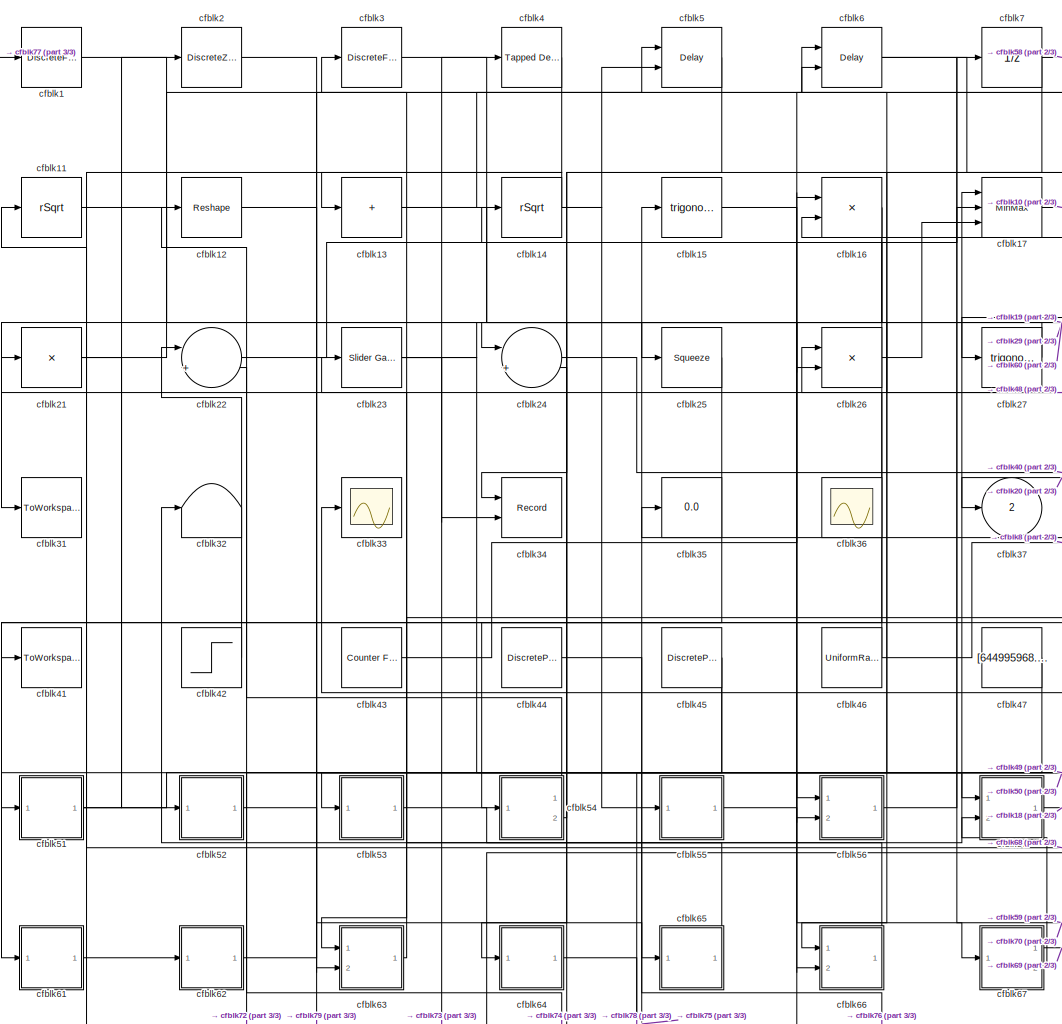
[diagram: root canvas - part 1/3, center side, full height]
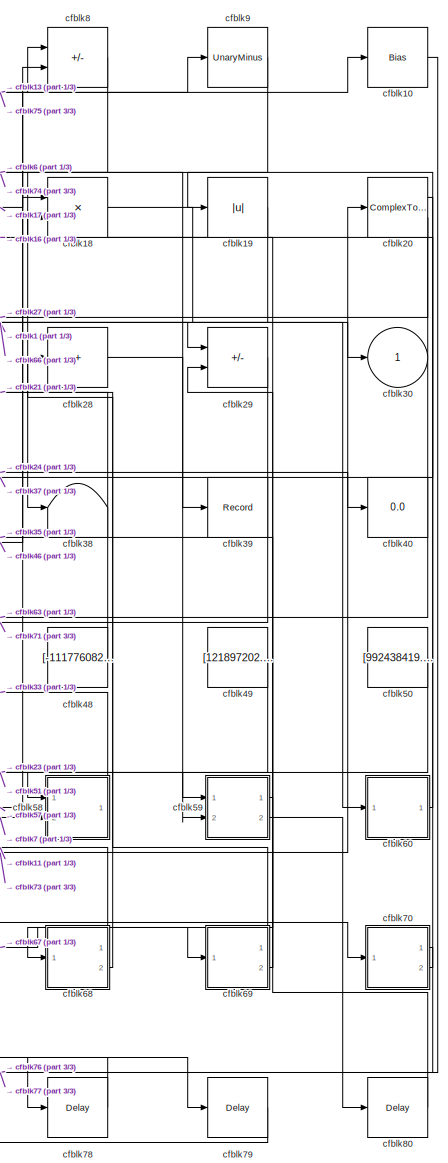
[diagram: root canvas - part 2/3, right side, full height]
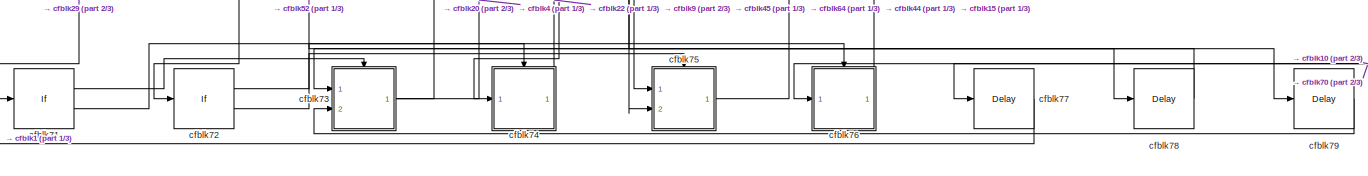
[diagram: root canvas - part 3/3, full width, bottom band]
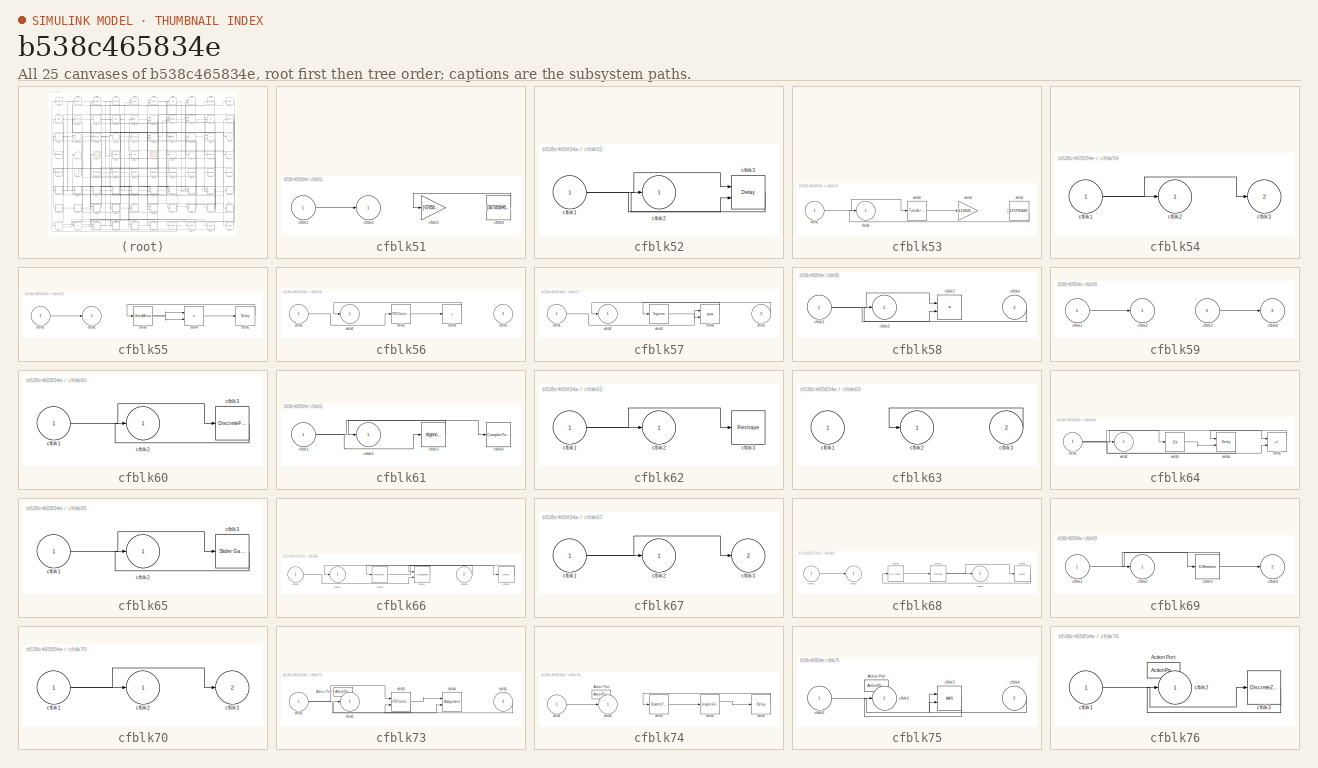
[diagram: thumbnail index - all 25 canvases of the model, root first then tree order]
MODEL slx_b538c465834e
KIND model
CONFIG AbsTol = auto
CONFIG EnableMultiTasking = off
CONFIG FixedStep = auto
CONFIG MaxStep = auto
CONFIG MinStep = auto
CONFIG RelTol = 1e-3
CONFIG SampleTimeConstraint = Unconstrained
CONFIG SolverName = VariableStepAuto
CONFIG StartTime = 0.0
CONFIG StopTime = 10.0
BLOCK [DiscreteFir] cfblk1
  InputPortMap = u0
  OutputPortMap = o0
  Ports = [1, 1]
  SampleTime = 1
BLOCK [Bias] cfblk10
  Bias = [-346727805.847978]
  SaturateOnIntegerOverflow = off
BLOCK [Sqrt] cfblk11
  AlgorithmType = Newton-Raphson
  Operator = rSqrt
BLOCK [Reshape] cfblk12
  Ports = [1, 1]
BLOCK [Sum] cfblk13
  IconShape = rectangular
  Inputs = +
  Ports = [1, 1]
BLOCK [Sqrt] cfblk14
  AlgorithmType = Newton-Raphson
  Operator = rSqrt
BLOCK [Trigonometry] cfblk15
  Ports = [1, 1]
BLOCK [Product] cfblk16
  Ports = [2, 1]
BLOCK [MinMax] cfblk17
  Inputs = 3
  Ports = [3, 1]
BLOCK [Product] cfblk18
  Inputs = **
  Ports = [2, 1]
BLOCK [Abs] cfblk19
  SaturateOnIntegerOverflow = off
BLOCK [DiscreteZeroPole] cfblk2
  Gain = 1
  Poles = [0 0.5]
BLOCK [ComplexToMagnitudeAngle] cfblk20
  Ports = [1, 2]
BLOCK [Product] cfblk21
  Inputs = *
  Ports = [1, 1]
BLOCK [Sum] cfblk22
  Inputs = |++
  Ports = [2, 1]
BLOCK [Reference] cfblk23  REF=simulink/Math
Operations/Slider
Gain
  Ports = [1, 1]
  SourceBlock = simulink/Math\nOperations/Slider\nGain
  SourceProductBaseCode = SL
  SourceType = Slider Gain
BLOCK [Sum] cfblk24
  Inputs = |++
  Ports = [2, 1]
BLOCK [Squeeze] cfblk25
BLOCK [Product] cfblk26
  Ports = [2, 1]
BLOCK [Trigonometry] cfblk27
  Ports = [1, 1]
BLOCK [Sum] cfblk28
  IconShape = rectangular
  Inputs = +
  Ports = [1, 1]
BLOCK [Sum] cfblk29
  IconShape = rectangular
  Inputs = +-
  Ports = [2, 1]
BLOCK [DiscreteFir] cfblk3
  InputPortMap = u0
  OutputPortMap = o0
  Ports = [1, 1]
  SampleTime = 1
BLOCK [Outport] cfblk30
BLOCK [ToWorkspace] cfblk31
  FixptAsFi = on
  MaxDataPoints = inf
  Ports = [1]
  SampleTime = -1
  SaveFormat = Timeseries
  VariableName = jchpsxm
BLOCK [Terminator] cfblk32
BLOCK [Scope] cfblk33
  Floating = off
  NumInputPorts = 1
  Ports = [1]
BLOCK [Record] cfblk34
  CompatibilityTag = XY
  FileSettingsInternal = {"entries":[{"content":{"excelSettings":{"content":{},"type":"Streamout.ExcelSettings"}},"type":"Streamout.FileSettingStorage","uuid":"70cb7938-f951-451c-907b-a84f501a5047"}],"packageUris":["http://schema.mathworks.com/mf0/streamout_blocks/R2020a"],"version":"1.0"}
  Layout = [1 1]
  Ports = [2]
  SignalsInternal = {"entries":[{"content":{"signals":[{"content":{"blockPath":["sampleModel296/cfblk34"],"channel":[],"dimensions":[1],"domain":"sampleModel296/cfblk34","lineColor":"#a2142f","plots":[1],"port":1,"sid":[""],"signalID":12815,"signalName":"cfblk16"},"type":"RecordBlkView.Signal","uuid":"91ed02d0-af21-4d72-a948-a3f96b9aafa8"},{"content":{"blockPath":["sampleModel296/cfblk34"],"channel":[],"dimensions":[...<+385ch>
  VisualizationBindings = {"xyplotplugin":{"info":[{"series":[{"bindingParametersList":[{"parameter":"X-Axis","signalID":12815,"signalName":"cfblk16"},{"parameter":"Y-Axis","signalID":12819,"signalName":"cfblk23"}],"seriesID":47221}],"subplotID":1}]}}
BLOCK [Display] cfblk35
  Decimation = 1
  Ports = [1]
BLOCK [Scope] cfblk36
  Floating = on
  NumInputPorts = 1
  Ports = []
BLOCK [Outport] cfblk37
  Port = 2
BLOCK [Terminator] cfblk38
BLOCK [Record] cfblk39
  FileSettingsInternal = {"entries":[{"content":{"excelSettings":{"content":{},"type":"Streamout.ExcelSettings"}},"type":"Streamout.FileSettingStorage","uuid":"bef84923-b0ff-41e3-8c8b-1e8532ce5f8a"}],"packageUris":["http://schema.mathworks.com/mf0/streamout_blocks/R2020a"],"version":"1.0"}
  Ports = [1]
  SignalsInternal = {"entries":[{"content":{"signals":[{"content":{"blockPath":["sampleModel296/cfblk39"],"channel":[],"dimensions":[1],"domain":"sampleModel296/cfblk39","lineColor":"#edb120","plots":[1],"port":1,"sid":[""],"signalID":12823,"signalName":"cfblk28"},"type":"RecordBlkView.Signal","uuid":"64c19216-7016-4b0c-9217-809d37faac0a"}]},"type":"RecordBlkView.InputSignals","uuid":"8ef6531f-e01f-4f18-9052-b346a54e...<+98ch>
  VisualizationBindings = {"sparklinesplugin":{"info":[{"bindingParametersList":[],"subplotID":1}]}}
BLOCK [Reference] cfblk4  REF=simulink/Discrete/Tapped Delay
  Ports = [1, 1]
  SourceBlock = simulink/Discrete/Tapped Delay
  SourceProductBaseCode = SL
  SourceType = Tapped Delay Line
BLOCK [Display] cfblk40
  Decimation = 1
  Ports = [1]
BLOCK [ToWorkspace] cfblk41
  FixptAsFi = on
  MaxDataPoints = inf
  Ports = [1]
  SampleTime = -1
  SaveFormat = Timeseries
  VariableName = qjkxmnr
BLOCK [Step] cfblk42
  After = [-453562245.048731]
  Before = [-531230514.260842]
  SampleTime = 0
  Time = [25.000000]
BLOCK [Reference] cfblk43  REF=simulink/Sources/Counter
Free-Running
  Ports = [0, 1]
  SourceBlock = simulink/Sources/Counter\nFree-Running
  SourceProductBaseCode = SL
  SourceType = Counter Free-Running
BLOCK [DiscretePulseGenerator] cfblk44
  Amplitude = [624896513.235593]
  Period = [56872901.216974]
  PhaseDelay = [3.000000]
  Ports = [0, 1]
  PulseType = Time based
  PulseWidth = 5
BLOCK [DiscretePulseGenerator] cfblk45
  Amplitude = [854098183.647855]
  Period = [20480296.172405]
  PhaseDelay = [6.000000]
  Ports = [0, 1]
  PulseType = Time based
  PulseWidth = 5
BLOCK [UniformRandomNumber] cfblk46
  Maximum = [9155275353.393217]
  Minimum = [-1217851113.027948]
  SampleTime = 0.1
  Seed = [12490932.000000]
BLOCK [Constant] cfblk47
  SampleTime = 1
  Value = [644995968.275540]
BLOCK [Constant] cfblk48
  SampleTime = 1
  Value = [-111776082.024185]
BLOCK [Constant] cfblk49
  SampleTime = 1
  Value = [121897202.156528]
BLOCK [Delay] cfblk5
  InputPortMap = u0,e6
  Ports = [2, 1]
  SampleTime = 1
  ShowEnablePort = on
BLOCK [Constant] cfblk50
  SampleTime = 1
  Value = [992438419.230620]
BLOCK [SubSystem] cfblk51
  Ports = [1, 1]
  RequestExecContextInheritance = off
BLOCK [Inport] cfblk51/cfblk1
BLOCK [Outport] cfblk51/cfblk2
BLOCK [Gain] cfblk51/cfblk3
  Gain = [-576508862.921776]
BLOCK [Constant] cfblk51/cfblk4
  SampleTime = 1
  Value = [367383845.470644]
BLOCK [SubSystem] cfblk52
  Ports = [1, 1]
  RequestExecContextInheritance = off
BLOCK [Inport] cfblk52/cfblk1
BLOCK [Outport] cfblk52/cfblk2
BLOCK [Delay] cfblk52/cfblk3
  InputPortMap = u0,e6
  Ports = [2, 1]
  SampleTime = 1
  ShowEnablePort = on
BLOCK [SubSystem] cfblk53
  Ports = [1, 1]
  RequestExecContextInheritance = off
BLOCK [Inport] cfblk53/cfblk1
BLOCK [Outport] cfblk53/cfblk2
BLOCK [Reference] cfblk53/cfblk3  REF=simulink/Discrete/Transfer Fcn
First Order
  Ports = [1, 1]
  SourceBlock = simulink/Discrete/Transfer Fcn\nFirst Order
  SourceProductBaseCode = SL
  SourceType = First Order Transfer Fcn
BLOCK [Gain] cfblk53/cfblk4
  Gain = [11260074.495937]
BLOCK [Constant] cfblk53/cfblk5
  SampleTime = 1
  Value = [-472799480.685592]
BLOCK [SubSystem] cfblk54
  Ports = [1, 2]
  RequestExecContextInheritance = off
BLOCK [Inport] cfblk54/cfblk1
BLOCK [Outport] cfblk54/cfblk2
BLOCK [Outport] cfblk54/cfblk3
  Port = 2
BLOCK [SubSystem] cfblk55
  Ports = [1, 1]
  RequestExecContextInheritance = off
BLOCK [Inport] cfblk55/cfblk1
BLOCK [Outport] cfblk55/cfblk2
BLOCK [UnaryMinus] cfblk55/cfblk3
BLOCK [Product] cfblk55/cfblk4
  Inputs = **
  Ports = [2, 1]
BLOCK [Delay] cfblk55/cfblk5
  InputPortMap = u0
  Ports = [1, 1]
  SampleTime = 1
BLOCK [SubSystem] cfblk56
  Ports = [2, 1]
  RequestExecContextInheritance = off
BLOCK [Inport] cfblk56/cfblk1
BLOCK [Outport] cfblk56/cfblk2
BLOCK [Reference] cfblk56/cfblk3  REF=slpidlib/PID Controller
  Ports = [1, 1]
  SourceBlock = slpidlib/PID Controller
  SourceProductBaseCode = SL
  SourceType = PID 1dof
BLOCK [Sum] cfblk56/cfblk4
  IconShape = rectangular
  Inputs = +
  Ports = [1, 1]
BLOCK [Inport] cfblk56/cfblk5
  Port = 2
BLOCK [SubSystem] cfblk57
  Ports = [2, 1]
  RequestExecContextInheritance = off
BLOCK [Inport] cfblk57/cfblk1
BLOCK [Outport] cfblk57/cfblk2
BLOCK [Signum] cfblk57/cfblk3
BLOCK [Math] cfblk57/cfblk4
  Operator = pow
  Ports = [2, 1]
BLOCK [Inport] cfblk57/cfblk5
  Port = 2
BLOCK [SubSystem] cfblk58
  Ports = [2, 1]
  RequestExecContextInheritance = off
BLOCK [Inport] cfblk58/cfblk1
BLOCK [Outport] cfblk58/cfblk2
BLOCK [Product] cfblk58/cfblk3
  Inputs = **
  Ports = [2, 1]
BLOCK [Inport] cfblk58/cfblk4
  Port = 2
BLOCK [SubSystem] cfblk59
  Ports = [2, 2]
  RequestExecContextInheritance = off
BLOCK [Inport] cfblk59/cfblk1
BLOCK [Outport] cfblk59/cfblk2
BLOCK [Inport] cfblk59/cfblk3
  Port = 2
BLOCK [Outport] cfblk59/cfblk4
  Port = 2
BLOCK [Delay] cfblk6
  InputPortMap = u0,e6
  Ports = [2, 1]
  SampleTime = 1
  ShowEnablePort = on
BLOCK [SubSystem] cfblk60
  Ports = [1, 1]
  RequestExecContextInheritance = off
BLOCK [Inport] cfblk60/cfblk1
BLOCK [Outport] cfblk60/cfblk2
BLOCK [DiscreteFilter] cfblk60/cfblk3
  InputPortMap = u0
  Ports = [1, 1]
  SampleTime = 1
BLOCK [SubSystem] cfblk61
  Ports = [1, 1]
  RequestExecContextInheritance = off
BLOCK [Inport] cfblk61/cfblk1
BLOCK [Outport] cfblk61/cfblk2
BLOCK [Trigonometry] cfblk61/cfblk3
  Ports = [1, 1]
BLOCK [ComplexToRealImag] cfblk61/cfblk4
  Ports = [1, 2]
BLOCK [SubSystem] cfblk62
  Ports = [1, 1]
  RequestExecContextInheritance = off
BLOCK [Inport] cfblk62/cfblk1
BLOCK [Outport] cfblk62/cfblk2
BLOCK [Reshape] cfblk62/cfblk3
  Ports = [1, 1]
BLOCK [SubSystem] cfblk63
  Ports = [2, 1]
  RequestExecContextInheritance = off
BLOCK [Inport] cfblk63/cfblk1
BLOCK [Outport] cfblk63/cfblk2
BLOCK [Inport] cfblk63/cfblk3
  Port = 2
BLOCK [SubSystem] cfblk64
  Ports = [1, 1]
  RequestExecContextInheritance = off
BLOCK [Inport] cfblk64/cfblk1
BLOCK [Outport] cfblk64/cfblk2
BLOCK [UnitDelay] cfblk64/cfblk3
  HasFrameUpgradeWarning = on
BLOCK [Delay] cfblk64/cfblk4
  DelayLengthSource = Input port
  InputPortMap = u0,p1
  Ports = [2, 1]
  SampleTime = 1
BLOCK [Sum] cfblk64/cfblk5
  IconShape = rectangular
  Inputs = +-
  Ports = [2, 1]
BLOCK [SubSystem] cfblk65
  Ports = [1, 1]
  RequestExecContextInheritance = off
BLOCK [Inport] cfblk65/cfblk1
BLOCK [Outport] cfblk65/cfblk2
BLOCK [Reference] cfblk65/cfblk3  REF=simulink/Math
Operations/Slider
Gain
  Ports = [1, 1]
  SourceBlock = simulink/Math\nOperations/Slider\nGain
  SourceProductBaseCode = SL
  SourceType = Slider Gain
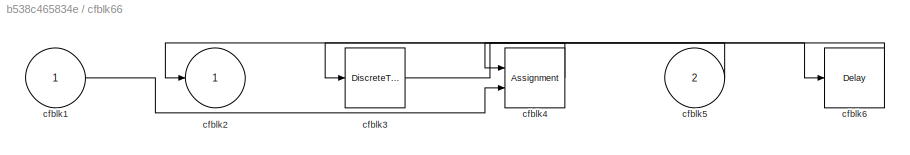
BLOCK [SubSystem] cfblk66
  Ports = [2, 1]
  RequestExecContextInheritance = off
BLOCK [Inport] cfblk66/cfblk1
BLOCK [Outport] cfblk66/cfblk2
BLOCK [DiscreteTransferFcn] cfblk66/cfblk3
  InputPortMap = u0
  Ports = [1, 1]
  SampleTime = 1
BLOCK [Assignment] cfblk66/cfblk4
  DiagnosticForDimensions = Warning
  IndexOptions = Index vector (dialog)
  Indices = 1
  OutputSizes = 1
  Ports = [2, 1]
BLOCK [Inport] cfblk66/cfblk5
  Port = 2
BLOCK [Delay] cfblk66/cfblk6
  InputPortMap = u0
  Ports = [1, 1]
  SampleTime = 1
BLOCK [SubSystem] cfblk67
  Ports = [1, 2]
  RequestExecContextInheritance = off
BLOCK [Inport] cfblk67/cfblk1
BLOCK [Outport] cfblk67/cfblk2
BLOCK [Outport] cfblk67/cfblk3
  Port = 2
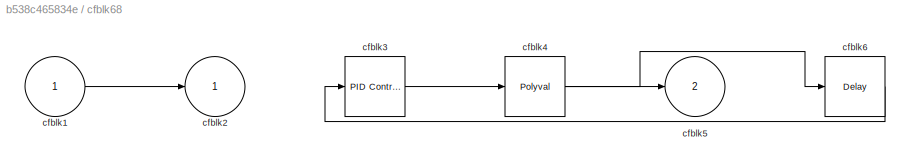
BLOCK [SubSystem] cfblk68
  Ports = [1, 2]
  RequestExecContextInheritance = off
BLOCK [Inport] cfblk68/cfblk1
BLOCK [Outport] cfblk68/cfblk2
BLOCK [Reference] cfblk68/cfblk3  REF=slpidlib/PID Controller
  Ports = [1, 1]
  SourceBlock = slpidlib/PID Controller
  SourceProductBaseCode = SL
  SourceType = PID 1dof
BLOCK [Polyval] cfblk68/cfblk4
  Coefs = [ +2.081618890e-019, -1.441693666e-014, +4.719686976e-010, -8.536869453e-006, +1.621573104e-001, -8.087801117e+001 ]
BLOCK [Outport] cfblk68/cfblk5
  Port = 2
BLOCK [Delay] cfblk68/cfblk6
  InputPortMap = u0
  Ports = [1, 1]
  SampleTime = 1
BLOCK [SubSystem] cfblk69
  Ports = [1, 2]
  RequestExecContextInheritance = off
BLOCK [Inport] cfblk69/cfblk1
BLOCK [Outport] cfblk69/cfblk2
BLOCK [Reference] cfblk69/cfblk3  REF=simulink/Discrete/Difference
  Ports = [1, 1]
  SourceBlock = simulink/Discrete/Difference
  SourceProductBaseCode = SL
  SourceType = Difference
BLOCK [Outport] cfblk69/cfblk4
  Port = 2
BLOCK [UnitDelay] cfblk7
  HasFrameUpgradeWarning = on
BLOCK [SubSystem] cfblk70
  Ports = [1, 2]
  RequestExecContextInheritance = off
BLOCK [Inport] cfblk70/cfblk1
BLOCK [Outport] cfblk70/cfblk2
BLOCK [Outport] cfblk70/cfblk3
  Port = 2
BLOCK [If] cfblk71
  IfExpression = u1 >= 0
  Ports = [1, 2]
  SampleTime = 1
BLOCK [If] cfblk72
  IfExpression = u1 >= 0
  Ports = [1, 2]
  SampleTime = 1
BLOCK [SubSystem] cfblk73
  Ports = [2, 1, 0, 0, 0, 0, 0, 1]
  RequestExecContextInheritance = off
  TreatAsAtomicUnit = on
BLOCK [ActionPort] cfblk73/Action Port
  ActionPortLabel = if(u1 >= 0)
BLOCK [Inport] cfblk73/cfblk1
BLOCK [Outport] cfblk73/cfblk2
BLOCK [Reference] cfblk73/cfblk3  REF=slpidlib/PID Controller (2DOF)
  Ports = [2, 1]
  SourceBlock = slpidlib/PID Controller (2DOF)
  SourceProductBaseCode = SL
  SourceType = PID 2dof
BLOCK [Assignment] cfblk73/cfblk4
  DiagnosticForDimensions = Warning
  IndexOptions = Index vector (dialog)
  Indices = 1
  OutputSizes = 1
  Ports = [2, 1]
BLOCK [Inport] cfblk73/cfblk5
  Port = 2
BLOCK [SubSystem] cfblk74
  Ports = [1, 1, 0, 0, 0, 0, 0, 1]
  RequestExecContextInheritance = off
  TreatAsAtomicUnit = on
BLOCK [ActionPort] cfblk74/Action Port
  ActionPortLabel = else
BLOCK [Inport] cfblk74/cfblk1
BLOCK [Outport] cfblk74/cfblk2
BLOCK [DiscreteTransferFcn] cfblk74/cfblk3
  InputPortMap = u0
  Ports = [1, 1]
BLOCK [ComplexToMagnitudeAngle] cfblk74/cfblk4
  Ports = [1, 2]
BLOCK [Delay] cfblk74/cfblk5
  InputPortMap = u0
  Ports = [1, 1]
BLOCK [SubSystem] cfblk75
  Ports = [2, 1, 0, 0, 0, 0, 0, 1]
  RequestExecContextInheritance = off
  TreatAsAtomicUnit = on
BLOCK [ActionPort] cfblk75/Action Port
  ActionPortLabel = if(u1 >= 0)
BLOCK [Inport] cfblk75/cfblk1
BLOCK [Outport] cfblk75/cfblk2
BLOCK [Math] cfblk75/cfblk3
  Operator = rem
  Ports = [2, 1]
BLOCK [Inport] cfblk75/cfblk4
  Port = 2
BLOCK [SubSystem] cfblk76
  Ports = [1, 1, 0, 0, 0, 0, 0, 1]
  RequestExecContextInheritance = off
  TreatAsAtomicUnit = on
BLOCK [ActionPort] cfblk76/Action Port
  ActionPortLabel = else
BLOCK [Inport] cfblk76/cfblk1
BLOCK [Outport] cfblk76/cfblk2
BLOCK [DiscreteZeroPole] cfblk76/cfblk3
  Gain = 1
  Poles = [0 0.5]
  SampleTime = -1
BLOCK [Delay] cfblk77
  InputPortMap = u0
  Ports = [1, 1]
  SampleTime = 1
BLOCK [Delay] cfblk78
  InputPortMap = u0
  Ports = [1, 1]
  SampleTime = 1
BLOCK [Delay] cfblk79
  InputPortMap = u0
  Ports = [1, 1]
  SampleTime = 1
BLOCK [Sum] cfblk8
  IconShape = rectangular
  Inputs = +-
  Ports = [2, 1]
BLOCK [Delay] cfblk80
  InputPortMap = u0
  Ports = [1, 1]
  SampleTime = 1
BLOCK [UnaryMinus] cfblk9
LINE cfblk10:1 -> cfblk77:1
LINE cfblk11:1 -> cfblk56:1
LINE cfblk12:1 -> cfblk57:1
NET cfblk13:1 -> cfblk60:1, cfblk8:1
NET cfblk14:1 -> cfblk13:1, cfblk55:1, cfblk5:2
LINE cfblk15:1 -> cfblk66:2
NET cfblk16:1 -> cfblk31:1, cfblk34:1
LINE cfblk17:1 -> cfblk10:1
LINE cfblk18:1 -> cfblk30:1
LINE cfblk19:1 -> cfblk66:1
LINE cfblk1:1 -> cfblk29:1
LINE cfblk20:1 -> cfblk37:1
NET cfblk20:2 -> cfblk27:1, cfblk63:1
NET cfblk21:1 -> cfblk52:1, cfblk5:1
LINE cfblk22:1 -> cfblk7:1
NET cfblk23:1 -> cfblk26:2, cfblk34:2, cfblk59:2
LINE cfblk24:1 -> cfblk40:1
LINE cfblk25:1 -> cfblk54:1
NET cfblk26:1 -> cfblk14:1, cfblk17:3, cfblk61:1
LINE cfblk27:1 -> cfblk24:1
LINE cfblk28:1 -> cfblk39:1
LINE cfblk29:1 -> cfblk71:1
LINE cfblk2:1 -> cfblk65:1
LINE cfblk3:1 -> cfblk25:1
LINE cfblk42:1 -> cfblk22:1
LINE cfblk43:1 -> cfblk16:1
LINE cfblk44:1 -> cfblk75:1
NET cfblk45:1 -> cfblk72:1, cfblk75:2
NET cfblk46:1 -> cfblk26:1, cfblk8:2
LINE cfblk47:1 -> cfblk56:2
LINE cfblk48:1 -> cfblk6:1
LINE cfblk49:1 -> cfblk63:2
LINE cfblk4:1 -> cfblk41:1
LINE cfblk50:1 -> cfblk51:1
LINE cfblk51/cfblk1:1 -> cfblk51/cfblk2:1
LINE cfblk51/cfblk4:1 -> cfblk51/cfblk3:1
NET cfblk51:1 -> cfblk2:1, cfblk58:1
NET cfblk52/cfblk1:1 -> cfblk52/cfblk3:1, cfblk52/cfblk3:2
LINE cfblk52/cfblk3:1 -> cfblk52/cfblk2:1
LINE cfblk52:1 -> cfblk79:1
LINE cfblk53/cfblk1:1 -> cfblk53/cfblk3:1
LINE cfblk53/cfblk3:1 -> cfblk53/cfblk4:1
LINE cfblk53/cfblk5:1 -> cfblk53/cfblk2:1
LINE cfblk53:1 -> cfblk17:1
NET cfblk54/cfblk1:1 -> cfblk54/cfblk2:1, cfblk54/cfblk3:1
LINE cfblk54:1 -> cfblk12:1
LINE cfblk54:2 -> cfblk24:2
LINE cfblk55/cfblk1:1 -> cfblk55/cfblk2:1
NET cfblk55/cfblk3:1 -> cfblk55/cfblk4:1, cfblk55/cfblk4:2
LINE cfblk55/cfblk4:1 -> cfblk55/cfblk5:1
LINE cfblk55/cfblk5:1 -> cfblk55/cfblk3:1
LINE cfblk55:1 -> cfblk67:1
LINE cfblk56/cfblk1:1 -> cfblk56/cfblk3:1
LINE cfblk56/cfblk3:1 -> cfblk56/cfblk4:1
LINE cfblk56/cfblk4:1 -> cfblk56/cfblk2:1
LINE cfblk56:1 -> cfblk17:2
LINE cfblk57/cfblk1:1 -> cfblk57/cfblk4:1
LINE cfblk57/cfblk3:1 -> cfblk57/cfblk4:2
LINE cfblk57/cfblk4:1 -> cfblk57/cfblk2:1
LINE cfblk57/cfblk5:1 -> cfblk57/cfblk3:1
LINE cfblk57:1 -> cfblk18:1
NET cfblk58/cfblk1:1 -> cfblk58/cfblk3:1, cfblk58/cfblk3:2
LINE cfblk58/cfblk4:1 -> cfblk58/cfblk2:1
LINE cfblk58:1 -> cfblk33:1
LINE cfblk59/cfblk1:1 -> cfblk59/cfblk2:1
LINE cfblk59/cfblk3:1 -> cfblk59/cfblk4:1
LINE cfblk59:1 -> cfblk68:1
LINE cfblk59:2 -> cfblk80:1
LINE cfblk5:1 -> cfblk64:1
LINE cfblk60/cfblk1:1 -> cfblk60/cfblk3:1
LINE cfblk60/cfblk3:1 -> cfblk60/cfblk2:1
LINE cfblk60:1 -> cfblk19:1
NET cfblk61/cfblk1:1 -> cfblk61/cfblk3:1, cfblk61/cfblk4:1
LINE cfblk61/cfblk3:1 -> cfblk61/cfblk2:1
LINE cfblk61:1 -> cfblk62:1
NET cfblk62/cfblk1:1 -> cfblk62/cfblk2:1, cfblk62/cfblk3:1
LINE cfblk62:1 -> cfblk6:2
LINE cfblk63/cfblk3:1 -> cfblk63/cfblk2:1
LINE cfblk63:1 -> cfblk23:1
NET cfblk64/cfblk1:1 -> cfblk64/cfblk3:1, cfblk64/cfblk5:1, cfblk64/cfblk5:2
LINE cfblk64/cfblk3:1 -> cfblk64/cfblk4:2
LINE cfblk64/cfblk4:1 -> cfblk64/cfblk2:1
LINE cfblk64/cfblk5:1 -> cfblk64/cfblk4:1
LINE cfblk64:1 -> cfblk78:1
LINE cfblk65/cfblk1:1 -> cfblk65/cfblk3:1
LINE cfblk65/cfblk3:1 -> cfblk65/cfblk2:1
LINE cfblk65:1 -> cfblk3:1
LINE cfblk66/cfblk1:1 -> cfblk66/cfblk4:2
LINE cfblk66/cfblk3:1 -> cfblk66/cfblk6:1
LINE cfblk66/cfblk4:1 -> cfblk66/cfblk3:1
LINE cfblk66/cfblk5:1 -> cfblk66/cfblk2:1
LINE cfblk66/cfblk6:1 -> cfblk66/cfblk4:1
LINE cfblk66:1 -> cfblk32:1
NET cfblk67/cfblk1:1 -> cfblk67/cfblk2:1, cfblk67/cfblk3:1
LINE cfblk67:1 -> cfblk69:1
LINE cfblk67:2 -> cfblk57:2
LINE cfblk68/cfblk1:1 -> cfblk68/cfblk2:1
LINE cfblk68/cfblk3:1 -> cfblk68/cfblk4:1
NET cfblk68/cfblk4:1 -> cfblk68/cfblk5:1, cfblk68/cfblk6:1
LINE cfblk68/cfblk6:1 -> cfblk68/cfblk3:1
LINE cfblk68:1 -> cfblk11:1
LINE cfblk68:2 -> cfblk21:1
LINE cfblk69/cfblk1:1 -> cfblk69/cfblk3:1
NET cfblk69/cfblk3:1 -> cfblk69/cfblk2:1, cfblk69/cfblk4:1
LINE cfblk69:1 -> cfblk28:1
NET cfblk69:2 -> cfblk18:2, cfblk35:1
NET cfblk6:1 -> cfblk59:1, cfblk70:1
NET cfblk70/cfblk1:1 -> cfblk70/cfblk2:1, cfblk70/cfblk3:1
LINE cfblk70:1 -> cfblk76:1
LINE cfblk70:2 -> cfblk16:2
LINE cfblk71:1 -> cfblk73:ifaction
LINE cfblk71:2 -> cfblk74:ifaction
LINE cfblk72:1 -> cfblk75:ifaction
LINE cfblk72:2 -> cfblk76:ifaction
NET cfblk73/cfblk1:1 -> cfblk73/cfblk3:1, cfblk73/cfblk4:2
NET cfblk73/cfblk3:1 -> cfblk73/cfblk2:1, cfblk73/cfblk4:1
LINE cfblk73/cfblk5:1 -> cfblk73/cfblk3:2
NET cfblk73:1 -> cfblk20:1, cfblk4:1
LINE cfblk74/cfblk1:1 -> cfblk74/cfblk2:1
LINE cfblk74/cfblk3:1 -> cfblk74/cfblk4:1
LINE cfblk74/cfblk4:1 -> cfblk74/cfblk5:1
LINE cfblk74/cfblk5:1 -> cfblk74/cfblk3:1
LINE cfblk74:1 -> cfblk22:2
LINE cfblk75/cfblk1:1 -> cfblk75/cfblk3:1
LINE cfblk75/cfblk3:1 -> cfblk75/cfblk2:1
LINE cfblk75/cfblk4:1 -> cfblk75/cfblk3:2
LINE cfblk75:1 -> cfblk9:1
LINE cfblk76/cfblk1:1 -> cfblk76/cfblk3:1
LINE cfblk76/cfblk3:1 -> cfblk76/cfblk2:1
LINE cfblk76:1 -> cfblk15:1
LINE cfblk77:1 -> cfblk1:1
LINE cfblk78:1 -> cfblk73:1
LINE cfblk79:1 -> cfblk73:2
NET cfblk7:1 -> cfblk53:1, cfblk58:2
LINE cfblk80:1 -> cfblk29:2
LINE cfblk8:1 -> cfblk38:1
LINE cfblk9:1 -> cfblk74:1
note: NET lines group one-source signal fan-out (src -> all destinations, sorted); 1:1 wires keep LINE
